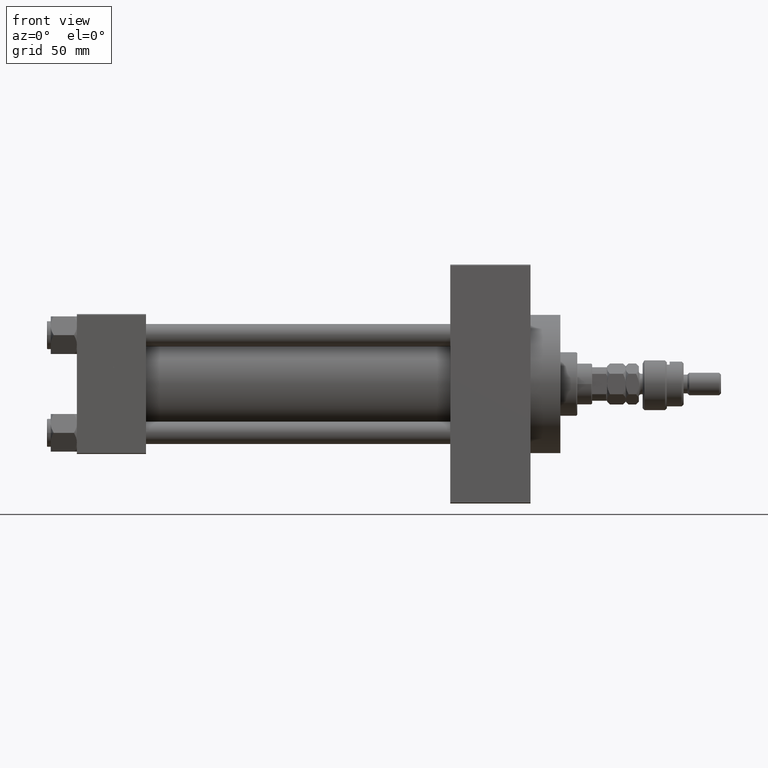
[diagram: clean part render]
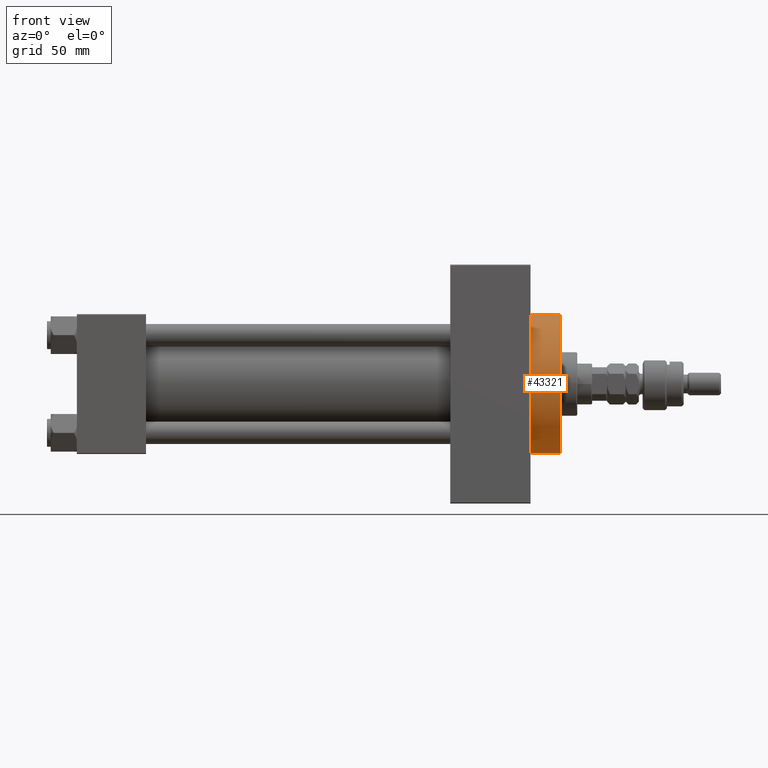
[diagram: same view with one face highlighted and labeled with its STEP entity id]
A machine part, front view. The second image highlights one B-rep face of the part: STEP entity #43321.
In plain terms, the highlighted cylindrical surface (partial cylindrical patch) has radius 37 mm, axis along (-1, -0, -0).
Its self-contained STEP definition (entity closure, byte-faithful):
#10 = CIRCLE ( 'NONE', #16899, 37.00000000000000000 ) ;
#146 = CARTESIAN_POINT ( 'NONE',  ( 243.0000000000000000, 0.000000000000000000, 0.000000000000000000 ) ) ;
#350 = VERTEX_POINT ( 'NONE', #32752 ) ;
#412 = DIRECTION ( 'NONE',  ( 0.000000000000000000, 0.000000000000000000, 1.000000000000000000 ) ) ;
#550 = VECTOR ( 'NONE', #30188, 1000.000000000000000 ) ;
#601 = EDGE_CURVE ( 'NONE', #39750, #350, #10, .T. ) ;
#787 = AXIS2_PLACEMENT_3D ( 'NONE', #32177, #8372, #412 ) ;
#1617 = ORIENTED_EDGE ( 'NONE', *, *, #8977, .T. ) ;
#3960 = ORIENTED_EDGE ( 'NONE', *, *, #601, .T. ) ;
#5029 = AXIS2_PLACEMENT_3D ( 'NONE', #23684, #39802, #12568 ) ;
#6162 = EDGE_CURVE ( 'NONE', #40997, #350, #50280, .T. ) ;
#6238 = VERTEX_POINT ( 'NONE', #11131 ) ;
#6732 = CIRCLE ( 'NONE', #5029, 37.00000000000000000 ) ;
#6903 = ORIENTED_EDGE ( 'NONE', *, *, #6162, .F. ) ;
#8372 = DIRECTION ( 'NONE',  ( -1.000000000000000000, -0.000000000000000000, -0.000000000000000000 ) ) ;
#8977 = EDGE_CURVE ( 'NONE', #6238, #39750, #16718, .T. ) ;
#10772 = VECTOR ( 'NONE', #25429, 1000.000000000000000 ) ;
#11131 = CARTESIAN_POINT ( 'NONE',  ( 259.0000000000000000, 0.000000000000000000, 37.00000000000000000 ) ) ;
#11212 = EDGE_LOOP ( 'NONE', ( #6903, #19898, #1617, #3960 ) ) ;
#12568 = DIRECTION ( 'NONE',  ( 0.000000000000000000, 0.000000000000000000, -1.000000000000000000 ) ) ;
#14052 = CARTESIAN_POINT ( 'NONE',  ( 259.0000000000000000, 4.531193156845206793E-15, -37.00000000000000000 ) ) ;
#14886 = EDGE_CURVE ( 'NONE', #6238, #40997, #6732, .T. ) ;
#16718 = LINE ( 'NONE', #36821, #10772 ) ;
#16899 = AXIS2_PLACEMENT_3D ( 'NONE', #146, #32438, #19724 ) ;
#19724 = DIRECTION ( 'NONE',  ( 0.000000000000000000, 0.000000000000000000, -1.000000000000000000 ) ) ;
#19898 = ORIENTED_EDGE ( 'NONE', *, *, #14886, .F. ) ;
#21041 = FACE_OUTER_BOUND ( 'NONE', #11212, .T. ) ;
#23509 = CARTESIAN_POINT ( 'NONE',  ( 243.0000000000000000, 0.000000000000000000, 37.00000000000000000 ) ) ;
#23684 = CARTESIAN_POINT ( 'NONE',  ( 259.0000000000000000, 0.000000000000000000, 0.000000000000000000 ) ) ;
#23975 = CYLINDRICAL_SURFACE ( 'NONE', #787, 37.00000000000000000 ) ;
#25429 = DIRECTION ( 'NONE',  ( -1.000000000000000000, -0.000000000000000000, -0.000000000000000000 ) ) ;
#28475 = CARTESIAN_POINT ( 'NONE',  ( 259.0000000000000000, 4.531193156845206793E-15, -37.00000000000000000 ) ) ;
#30188 = DIRECTION ( 'NONE',  ( -1.000000000000000000, -0.000000000000000000, -0.000000000000000000 ) ) ;
#32177 = CARTESIAN_POINT ( 'NONE',  ( 259.0000000000000000, 0.000000000000000000, 0.000000000000000000 ) ) ;
#32438 = DIRECTION ( 'NONE',  ( 1.000000000000000000, 0.000000000000000000, 0.000000000000000000 ) ) ;
#32752 = CARTESIAN_POINT ( 'NONE',  ( 243.0000000000000000, 4.531193156845206793E-15, -37.00000000000000000 ) ) ;
#36821 = CARTESIAN_POINT ( 'NONE',  ( 259.0000000000000000, 0.000000000000000000, 37.00000000000000000 ) ) ;
#39750 = VERTEX_POINT ( 'NONE', #23509 ) ;
#39802 = DIRECTION ( 'NONE',  ( 1.000000000000000000, 0.000000000000000000, 0.000000000000000000 ) ) ;
#40997 = VERTEX_POINT ( 'NONE', #28475 ) ;
#43321 = ADVANCED_FACE ( 'NONE', ( #21041 ), #23975, .T. ) ;
#50280 = LINE ( 'NONE', #14052, #550 ) ;